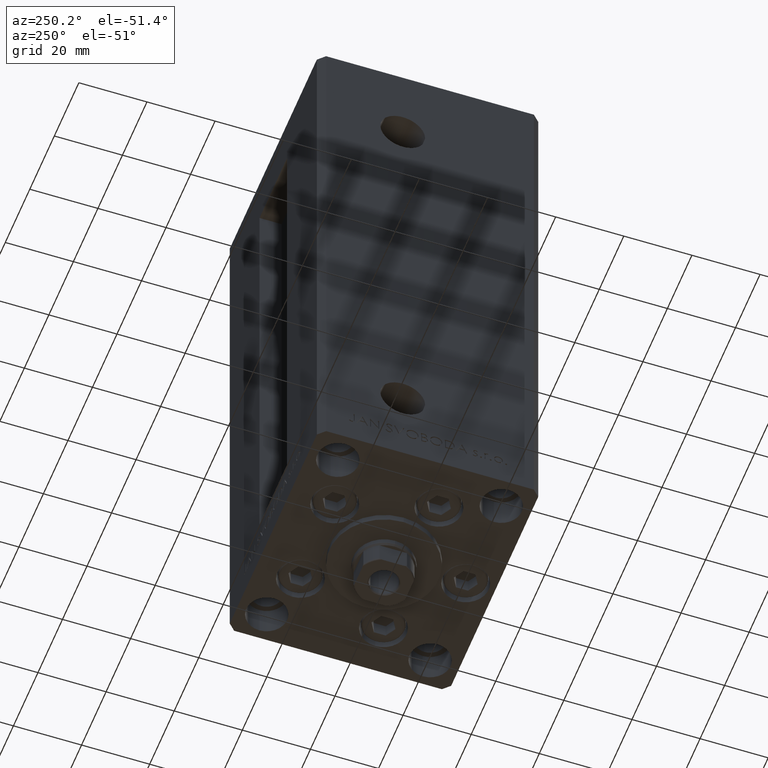
[diagram: clean part render]
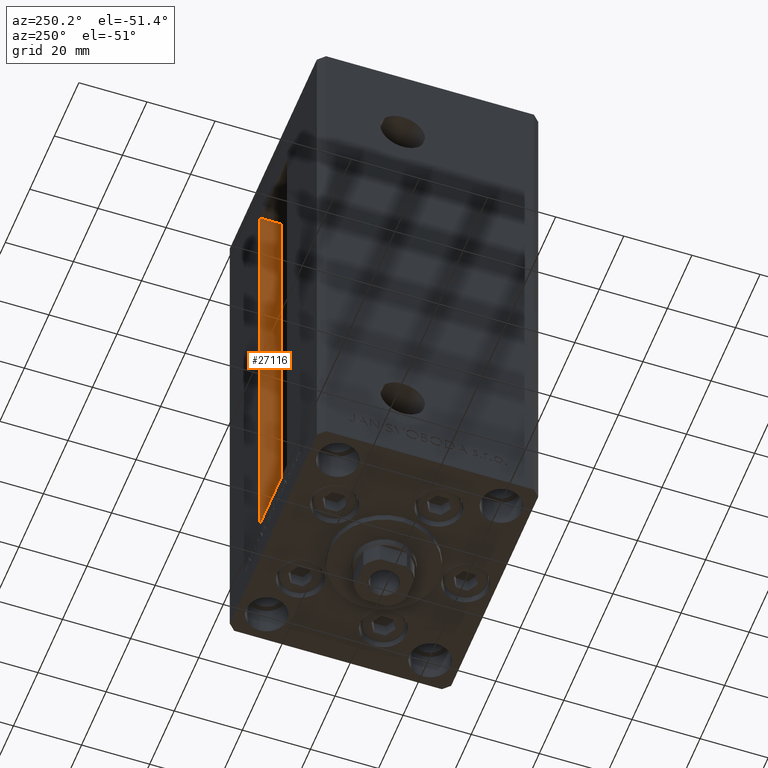
[diagram: same view with one face highlighted and labeled with its STEP entity id]
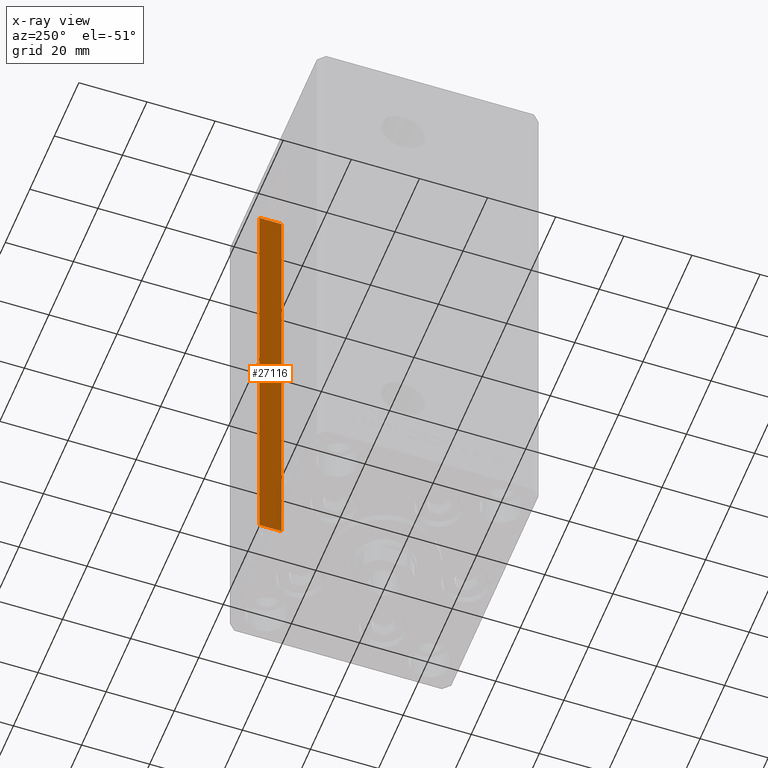
[diagram: x-ray of the same camera — body ghosted, the highlighted face saturated]
A machine part, auxiliary view. The second image highlights one B-rep face of the part: STEP entity #27116.
The next image is the same camera in x-ray: the body ghosted, the highlighted face saturated — about 3% of this face is hidden behind the body in this view.
In plain terms, the highlighted planar face has unit normal (1, 0, 0).
Its self-contained STEP definition (entity closure, byte-faithful):
#603 = EDGE_CURVE ( 'NONE', #47669, #38939, #4482, .T. ) ;
#1093 = CARTESIAN_POINT ( 'NONE',  ( 11.25000000000000178, 25.99999999999999289, 0.000000000000000000 ) ) ;
#1747 = VECTOR ( 'NONE', #11921, 1000.000000000000000 ) ;
#2985 = EDGE_CURVE ( 'NONE', #38939, #21158, #30997, .T. ) ;
#4482 = LINE ( 'NONE', #46656, #14636 ) ;
#5197 = VECTOR ( 'NONE', #43408, 1000.000000000000000 ) ;
#6116 = CARTESIAN_POINT ( 'NONE',  ( 11.25000000000000178, 25.99999999999999289, 0.000000000000000000 ) ) ;
#8757 = VERTEX_POINT ( 'NONE', #25591 ) ;
#11921 = DIRECTION ( 'NONE',  ( -0.000000000000000000, -0.000000000000000000, 1.000000000000000000 ) ) ;
#12795 = LINE ( 'NONE', #28108, #5197 ) ;
#13265 = EDGE_CURVE ( 'NONE', #21158, #8757, #12795, .T. ) ;
#14523 = ORIENTED_EDGE ( 'NONE', *, *, #2985, .F. ) ;
#14636 = VECTOR ( 'NONE', #27588, 1000.000000000000000 ) ;
#14945 = CARTESIAN_POINT ( 'NONE',  ( 11.25000000000000178, 32.49999999999999289, 0.000000000000000000 ) ) ;
#15975 = AXIS2_PLACEMENT_3D ( 'NONE', #46468, #16331, #35162 ) ;
#16331 = DIRECTION ( 'NONE',  ( 1.000000000000000000, -0.000000000000000000, 0.000000000000000000 ) ) ;
#18863 = CARTESIAN_POINT ( 'NONE',  ( 11.25000000000000178, 32.49999999999999289, 0.000000000000000000 ) ) ;
#21158 = VERTEX_POINT ( 'NONE', #38232 ) ;
#25591 = CARTESIAN_POINT ( 'NONE',  ( 11.25000000000000178, 25.99999999999999289, 136.0000000000000000 ) ) ;
#27116 = ADVANCED_FACE ( 'NONE', ( #39170 ), #31156, .F. ) ;
#27588 = DIRECTION ( 'NONE',  ( 0.000000000000000000, 1.000000000000000000, 0.000000000000000000 ) ) ;
#27722 = LINE ( 'NONE', #1093, #35167 ) ;
#28108 = CARTESIAN_POINT ( 'NONE',  ( 11.25000000000000178, 0.000000000000000000, 136.0000000000000000 ) ) ;
#30997 = LINE ( 'NONE', #14945, #1747 ) ;
#31156 = PLANE ( 'NONE',  #15975 ) ;
#34528 = ORIENTED_EDGE ( 'NONE', *, *, #13265, .F. ) ;
#35162 = DIRECTION ( 'NONE',  ( 0.000000000000000000, 0.000000000000000000, -1.000000000000000000 ) ) ;
#35167 = VECTOR ( 'NONE', #39255, 1000.000000000000000 ) ;
#36552 = EDGE_CURVE ( 'NONE', #47669, #8757, #27722, .T. ) ;
#38232 = CARTESIAN_POINT ( 'NONE',  ( 11.24999999999999467, 32.49999999999999289, 136.0000000000000000 ) ) ;
#38939 = VERTEX_POINT ( 'NONE', #18863 ) ;
#39170 = FACE_OUTER_BOUND ( 'NONE', #49523, .T. ) ;
#39255 = DIRECTION ( 'NONE',  ( -0.000000000000000000, -0.000000000000000000, 1.000000000000000000 ) ) ;
#42379 = ORIENTED_EDGE ( 'NONE', *, *, #36552, .T. ) ;
#43408 = DIRECTION ( 'NONE',  ( -0.000000000000000000, -1.000000000000000000, 0.000000000000000000 ) ) ;
#44126 = ORIENTED_EDGE ( 'NONE', *, *, #603, .F. ) ;
#46468 = CARTESIAN_POINT ( 'NONE',  ( 11.25000000000000178, 25.99999999999999289, 0.000000000000000000 ) ) ;
#46656 = CARTESIAN_POINT ( 'NONE',  ( 11.25000000000000178, 25.99999999999999289, 0.000000000000000000 ) ) ;
#47669 = VERTEX_POINT ( 'NONE', #6116 ) ;
#49523 = EDGE_LOOP ( 'NONE', ( #14523, #44126, #42379, #34528 ) ) ;